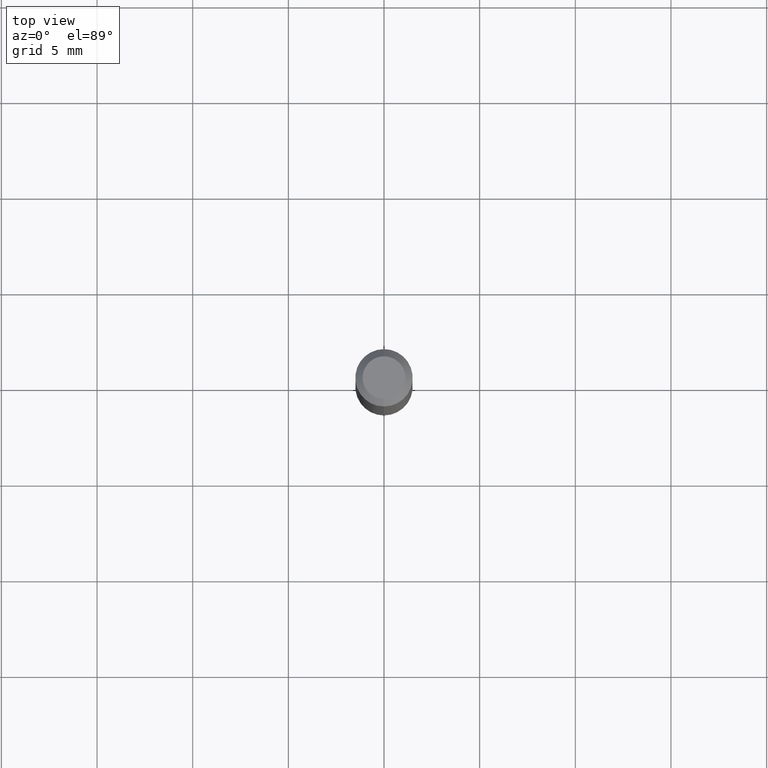
[diagram: clean part render]
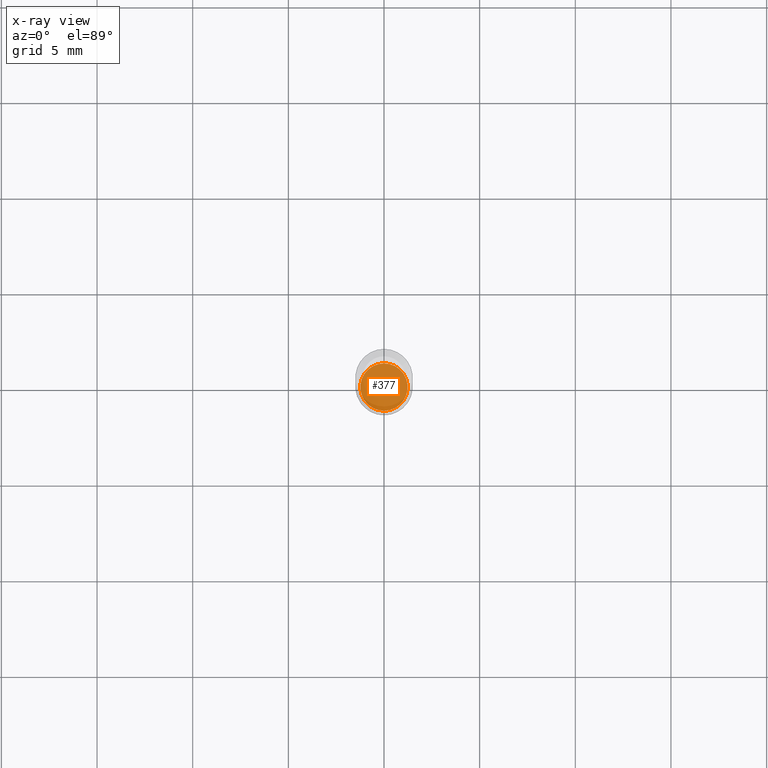
[diagram: x-ray — body ghosted, one internal face saturated and labeled with its STEP entity id]
A machine part, top view, then the same camera in x-ray: the body is ghosted and one INTERNAL B-rep face — a face not visible from any outside direction — is saturated and labeled: STEP entity #377.
In plain terms, the highlighted planar face has unit normal (-0, 0, 1).
Its self-contained STEP definition (entity closure, byte-faithful):
#49 = DIRECTION ( 'NONE',  ( -6.982962677686266711E-15, -1.000000000000000000, 2.804772067417108113E-15 ) ) ;
#89 = FACE_OUTER_BOUND ( 'NONE', #482, .T. ) ;
#91 = CARTESIAN_POINT ( 'NONE',  ( -3.400702824032937589E-16, -0.04870000000000392071, -1.122099999999999653 ) ) ;
#180 = ORIENTED_EDGE ( 'NONE', *, *, #227, .F. ) ;
#227 = EDGE_CURVE ( 'NONE', #309, #282, #451, .T. ) ;
#229 = CARTESIAN_POINT ( 'NONE',  ( 2.743431990804305521E-29, -3.918691339165277420E-15, -1.122099999999999875 ) ) ;
#246 = DIRECTION ( 'NONE',  ( -2.444908645222623477E-29, 3.492283521223846478E-15, 1.000000000000000000 ) ) ;
#264 = CARTESIAN_POINT ( 'NONE',  ( 2.743431990804305521E-29, -3.918691339165277420E-15, -1.122099999999999875 ) ) ;
#274 = AXIS2_PLACEMENT_3D ( 'NONE', #229, #399, #49 ) ;
#282 = VERTEX_POINT ( 'NONE', #91 ) ;
#290 = AXIS2_PLACEMENT_3D ( 'NONE', #452, #246, #418 ) ;
#309 = VERTEX_POINT ( 'NONE', #417 ) ;
#339 = CIRCLE ( 'NONE', #274, 0.04870000000000000023 ) ;
#347 = EDGE_CURVE ( 'NONE', #282, #309, #339, .T. ) ;
#367 = ORIENTED_EDGE ( 'NONE', *, *, #347, .F. ) ;
#377 = ADVANCED_FACE ( 'NONE', ( #89 ), #412, .F. ) ;
#399 = DIRECTION ( 'NONE',  ( -2.444908645222623477E-29, 3.492283521223846478E-15, 1.000000000000000000 ) ) ;
#412 = PLANE ( 'NONE',  #476 ) ;
#417 = CARTESIAN_POINT ( 'NONE',  ( 3.478106691545965557E-16, 0.04869999999999607976, -1.122100000000000097 ) ) ;
#418 = DIRECTION ( 'NONE',  ( -6.982962677686266711E-15, -1.000000000000000000, 2.804772067417108113E-15 ) ) ;
#451 = CIRCLE ( 'NONE', #290, 0.04870000000000000023 ) ;
#452 = CARTESIAN_POINT ( 'NONE',  ( 2.743431990804305521E-29, -3.918691339165277420E-15, -1.122099999999999875 ) ) ;
#456 = DIRECTION ( 'NONE',  ( -6.982962677686265922E-15, -1.000000000000000000, 3.492283521223846084E-15 ) ) ;
#476 = AXIS2_PLACEMENT_3D ( 'NONE', #264, #506, #456 ) ;
#482 = EDGE_LOOP ( 'NONE', ( #367, #180 ) ) ;
#506 = DIRECTION ( 'NONE',  ( -2.444908645222623477E-29, 3.492283521223846084E-15, 1.000000000000000000 ) ) ;